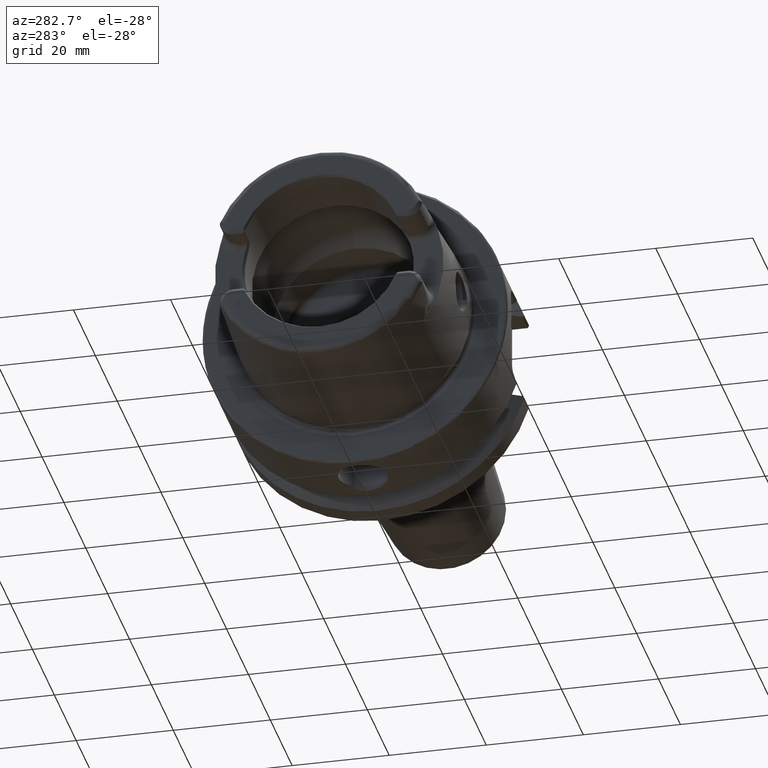
[diagram: clean part render]
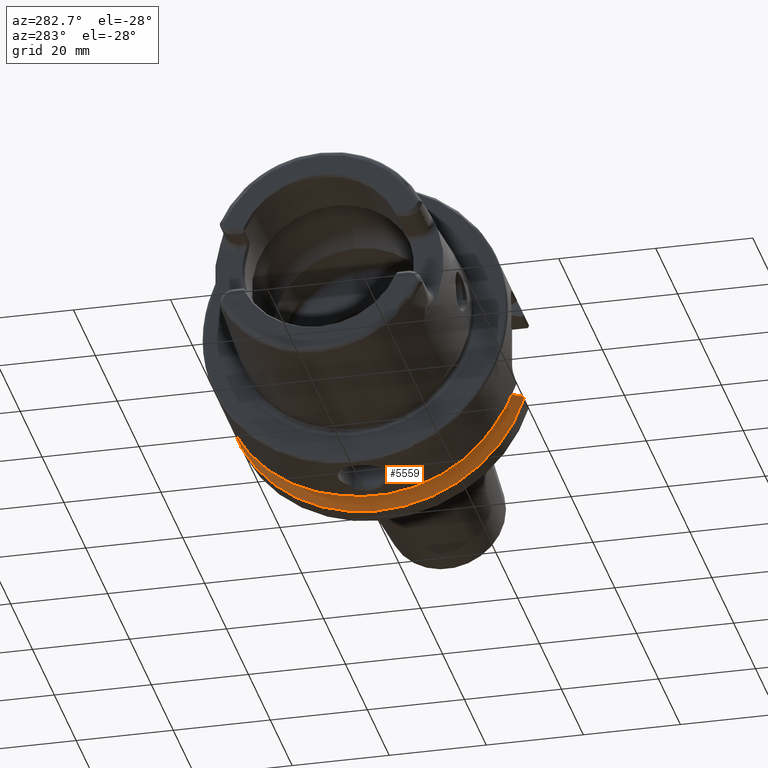
[diagram: same view with one face highlighted and labeled with its STEP entity id]
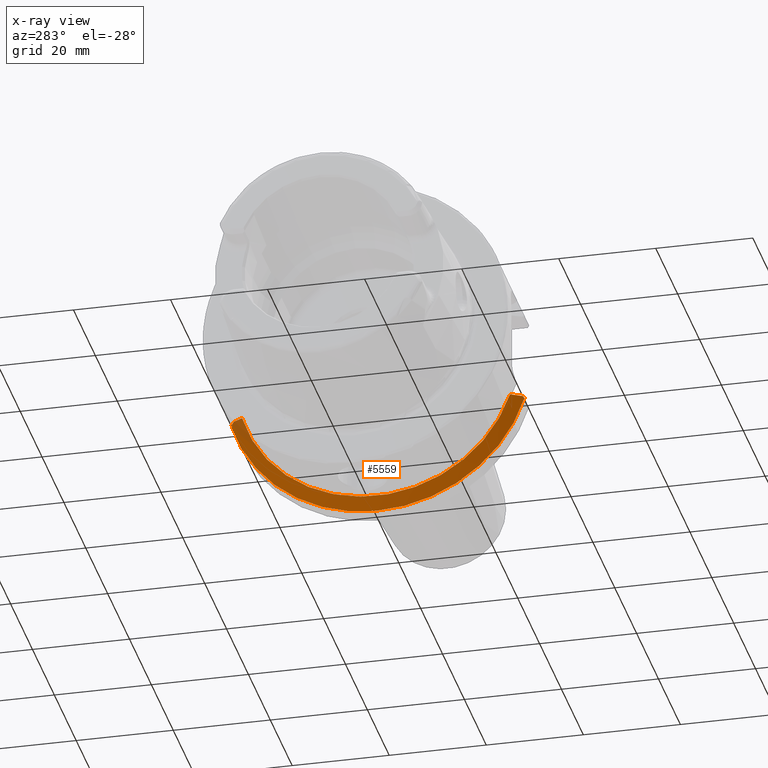
[diagram: x-ray of the same camera — body ghosted, the highlighted face saturated]
A machine part, auxiliary view. The second image highlights one B-rep face of the part: STEP entity #5559.
The next image is the same camera in x-ray: the body ghosted, the highlighted face saturated — about 5% of this face is hidden behind the body in this view.
In plain terms, the highlighted conical surface has half-angle 60 deg.
Its self-contained STEP definition (entity closure, byte-faithful):
#2066=CARTESIAN_POINT('',(8.416338210270E-1,1.193014587568E0,
-3.386838789065E-1));
#2067=CARTESIAN_POINT('',(8.397325519795E-1,1.190348295228E0,
-3.360175865668E-1));
#2068=CARTESIAN_POINT('',(8.359491677279E-1,1.185035963371E0,
-3.307052547097E-1));
#2069=CARTESIAN_POINT('',(8.303316251898E-1,1.177128306281E0,
-3.227975976196E-1));
#2070=CARTESIAN_POINT('',(8.266248362832E-1,1.171896920848E0,
-3.175662121862E-1));
#2071=CARTESIAN_POINT('',(8.247810130361E-1,1.169291338583E0,
-3.149606299213E-1));
#2073=CARTESIAN_POINT('',(7.824803149606E-1,1.093234861416E0,
-3.149606299213E-1));
#2074=CARTESIAN_POINT('',(7.870729981538E-1,1.101513170390E0,
-3.149606299213E-1));
#2075=CARTESIAN_POINT('',(7.963300821951E-1,1.118184646874E0,
-3.149606299213E-1));
#2076=CARTESIAN_POINT('',(8.104299727961E-1,1.143535750108E0,
-3.149606299213E-1));
#2077=CARTESIAN_POINT('',(8.199734961844E-1,1.160667686648E0,
-3.149606299213E-1));
#2078=CARTESIAN_POINT('',(8.247810130361E-1,1.169291338583E0,
-3.149606299213E-1));
#2080=CARTESIAN_POINT('',(7.824803149606E-1,0.E0,0.E0));
#2081=DIRECTION('',(-1.E0,0.E0,0.E0));
#2082=DIRECTION('',(0.E0,9.609161313143E-1,-2.768396441624E-1));
#2083=AXIS2_PLACEMENT_3D('',#2080,#2081,#2082);
#2085=CARTESIAN_POINT('',(8.310344740385E-1,-1.169291338583E0,
-3.543307086614E-1));
#2086=CARTESIAN_POINT('',(8.254885380973E-1,-1.159254141223E0,
-3.543307086614E-1));
#2087=CARTESIAN_POINT('',(8.144971552515E-1,-1.139339874891E0,
-3.543307086614E-1));
#2088=CARTESIAN_POINT('',(7.983135657433E-1,-1.109951020004E0,
-3.543307086614E-1));
#2089=CARTESIAN_POINT('',(7.877245030106E-1,-1.090674883263E0,
-3.543307086614E-1));
#2090=CARTESIAN_POINT('',(7.824803149606E-1,-1.081116279368E0,
-3.543307086614E-1));
#2092=CARTESIAN_POINT('',(8.310344740385E-1,-1.169291338583E0,
-3.543307086614E-1));
#2093=CARTESIAN_POINT('',(8.327850921454E-1,-1.171722839934E0,
-3.567622100124E-1));
#2094=CARTESIAN_POINT('',(8.363022710633E-1,-1.176602806753E0,
-3.616421768322E-1));
#2095=CARTESIAN_POINT('',(8.398513265681E-1,-1.181516704977E0,
-3.665560750560E-1));
#2096=CARTESIAN_POINT('',(8.416338210270E-1,-1.183982137824E0,
-3.690215079028E-1));
#2098=CARTESIAN_POINT('',(8.416338210270E-1,0.E0,0.E0));
#2099=DIRECTION('',(1.E0,0.E0,0.E0));
#2100=DIRECTION('',(0.E0,-9.547030571660E-1,-2.975602000232E-1));
#2101=AXIS2_PLACEMENT_3D('',#2098,#2099,#2100);
#2923=CARTESIAN_POINT('',(7.824803149606E-1,1.093234861416E0,
-3.149606299213E-1));
#2924=VERTEX_POINT('',#2923);
#2955=CARTESIAN_POINT('',(7.824803149606E-1,-1.081116279368E0,
-3.543307086614E-1));
#2956=VERTEX_POINT('',#2955);
#3155=VERTEX_POINT('',#2092);
#3156=VERTEX_POINT('',#2096);
#3178=VERTEX_POINT('',#2066);
#3179=VERTEX_POINT('',#2071);
#5544=CARTESIAN_POINT('',(8.120570679938E-1,0.E0,0.E0));
#5545=DIRECTION('',(1.E0,0.E0,0.E0));
#5546=DIRECTION('',(0.E0,0.E0,1.E0));
#5547=AXIS2_PLACEMENT_3D('',#5544,#5545,#5546);
#5548=CONICAL_SURFACE('',#5547,1.188929041339E0,6.E1);
#5549=ORIENTED_EDGE('',*,*,#4921,.T.);
#5551=ORIENTED_EDGE('',*,*,#5550,.F.);
#5553=ORIENTED_EDGE('',*,*,#5552,.T.);
#5554=ORIENTED_EDGE('',*,*,#5503,.F.);
#5555=ORIENTED_EDGE('',*,*,#5476,.T.);
#5556=ORIENTED_EDGE('',*,*,#4825,.T.);
#5557=EDGE_LOOP('',(#5549,#5551,#5553,#5554,#5555,#5556));
#5558=FACE_OUTER_BOUND('',#5557,.F.);
#5559=ADVANCED_FACE('',(#5558),#5548,.T.);
#2072=B_SPLINE_CURVE_WITH_KNOTS('',3,(#2066,#2067,#2068,#2069,#2070,#2071),
.UNSPECIFIED.,.F.,.F.,(4,1,1,4),(0.E0,3.333333333333E-1,6.666666666667E-1,1.E0),
.UNSPECIFIED.);
#2079=B_SPLINE_CURVE_WITH_KNOTS('',3,(#2073,#2074,#2075,#2076,#2077,#2078),
.UNSPECIFIED.,.F.,.F.,(4,1,1,4),(0.E0,3.333333333333E-1,6.666666666667E-1,1.E0),
.UNSPECIFIED.);
#2084=CIRCLE('',#2083,1.137700602362E0);
#2091=B_SPLINE_CURVE_WITH_KNOTS('',3,(#2085,#2086,#2087,#2088,#2089,#2090),
.UNSPECIFIED.,.F.,.F.,(4,1,1,4),(0.E0,3.333333333333E-1,6.666666666667E-1,1.E0),
.UNSPECIFIED.);
#2097=B_SPLINE_CURVE_WITH_KNOTS('',3,(#2092,#2093,#2094,#2095,#2096),
.UNSPECIFIED.,.F.,.F.,(4,1,4),(0.E0,5.E-1,1.E0),.UNSPECIFIED.);
#2102=CIRCLE('',#2101,1.240157480315E0);
#4825=EDGE_CURVE('',#3156,#3178,#2102,.T.);
#4921=EDGE_CURVE('',#3178,#3179,#2072,.T.);
#5476=EDGE_CURVE('',#3155,#3156,#2097,.T.);
#5503=EDGE_CURVE('',#3155,#2956,#2091,.T.);
#5550=EDGE_CURVE('',#2924,#3179,#2079,.T.);
#5552=EDGE_CURVE('',#2924,#2956,#2084,.T.);